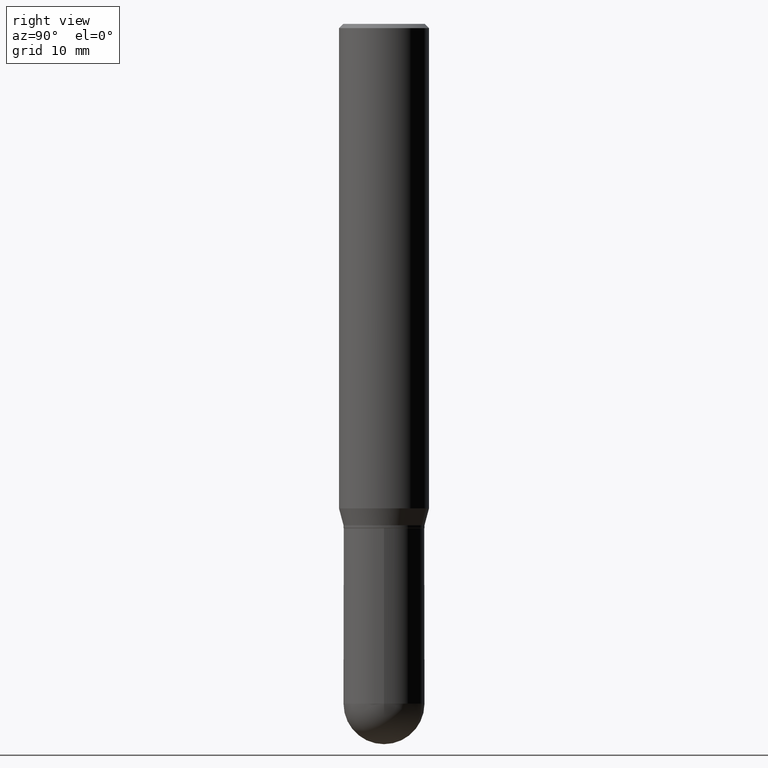
[diagram: clean part render]
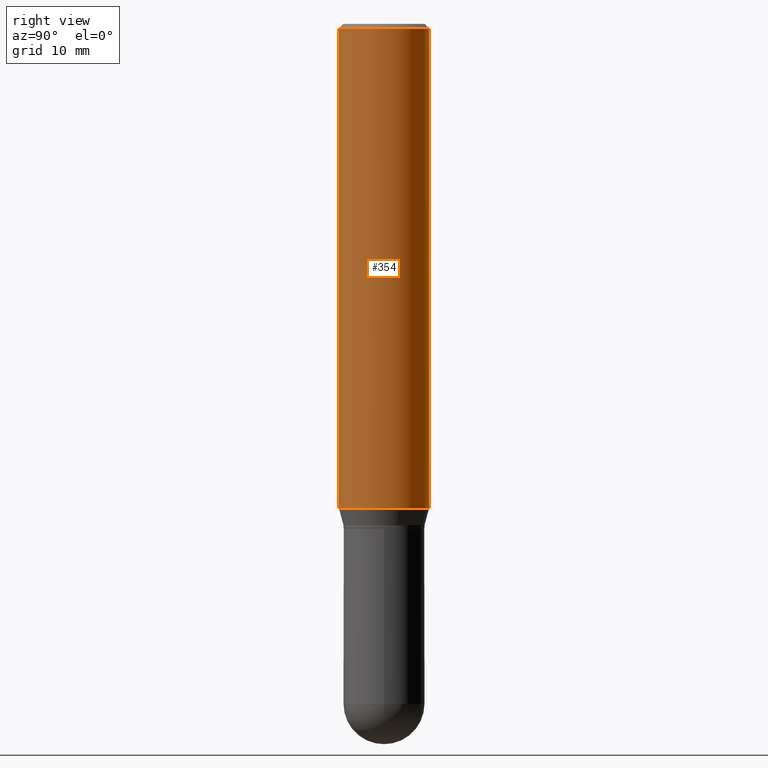
[diagram: same view with one face highlighted and labeled with its STEP entity id]
A machine part, right view. The second image highlights one B-rep face of the part: STEP entity #354.
In plain terms, the highlighted cylindrical surface (partial cylindrical patch) has radius 3.9688 mm, axis along (-0, 0, 1).
Its self-contained STEP definition (entity closure, byte-faithful):
#1 = CARTESIAN_POINT ( 'NONE',  ( 4.112073964147616750E-29, -5.871553085609828097E-15, -1.681593404861546848 ) ) ;
#30 = AXIS2_PLACEMENT_3D ( 'NONE', #311, #458, #114 ) ;
#35 = LINE ( 'NONE', #506, #58 ) ;
#49 = VERTEX_POINT ( 'NONE', #50 ) ;
#50 = CARTESIAN_POINT ( 'NONE',  ( 1.110223024625197561E-15, 0.1562499999999999445, -0.01500000000000051466 ) ) ;
#58 = VECTOR ( 'NONE', #203, 39.37007874015748143 ) ;
#73 = CIRCLE ( 'NONE', #30, 0.1562500000000000000 ) ;
#74 = AXIS2_PLACEMENT_3D ( 'NONE', #1, #286, #83 ) ;
#77 = DIRECTION ( 'NONE',  ( -2.445343774695752109E-29, 3.491660391052294645E-15, 1.000000000000000000 ) ) ;
#83 = DIRECTION ( 'NONE',  ( -6.982962677686265133E-15, -1.000000000000000000, 3.496765431890256920E-15 ) ) ;
#98 = VECTOR ( 'NONE', #151, 39.37007874015748143 ) ;
#104 = VERTEX_POINT ( 'NONE', #292 ) ;
#114 = DIRECTION ( 'NONE',  ( -6.982962677686265133E-15, -1.000000000000000000, 3.496765431890256920E-15 ) ) ;
#151 = DIRECTION ( 'NONE',  ( -2.445343774695752109E-29, 3.491660391052294645E-15, 1.000000000000000000 ) ) ;
#154 = CARTESIAN_POINT ( 'NONE',  ( 0.000000000000000000, 0.000000000000000000, 0.000000000000000000 ) ) ;
#156 = EDGE_LOOP ( 'NONE', ( #198, #270, #496, #386 ) ) ;
#180 = AXIS2_PLACEMENT_3D ( 'NONE', #154, #77, #389 ) ;
#197 = CARTESIAN_POINT ( 'NONE',  ( -1.091087918388437956E-15, -0.1562500000000058842, -1.681593404861546404 ) ) ;
#198 = ORIENTED_EDGE ( 'NONE', *, *, #501, .T. ) ;
#203 = DIRECTION ( 'NONE',  ( -2.445343774695752109E-29, 3.491660391052294645E-15, 1.000000000000000000 ) ) ;
#247 = FACE_OUTER_BOUND ( 'NONE', #156, .T. ) ;
#259 = VERTEX_POINT ( 'NONE', #352 ) ;
#270 = ORIENTED_EDGE ( 'NONE', *, *, #487, .T. ) ;
#286 = DIRECTION ( 'NONE',  ( -2.445343774695752109E-29, 3.491660391052294645E-15, 1.000000000000000000 ) ) ;
#292 = CARTESIAN_POINT ( 'NONE',  ( -1.091087918388478779E-15, -0.1562500000000000833, -0.01499999999999942178 ) ) ;
#308 = EDGE_CURVE ( 'NONE', #359, #104, #502, .T. ) ;
#310 = EDGE_CURVE ( 'NONE', #104, #49, #73, .T. ) ;
#311 = CARTESIAN_POINT ( 'NONE',  ( 3.668015662043620053E-31, -5.237490586578430900E-17, -0.01499999999999996822 ) ) ;
#334 = CIRCLE ( 'NONE', #74, 0.1562500000000000000 ) ;
#352 = CARTESIAN_POINT ( 'NONE',  ( 1.110223024625197561E-15, 0.1562499999999941436, -1.681593404861547514 ) ) ;
#354 = ADVANCED_FACE ( 'NONE', ( #247 ), #429, .T. ) ;
#359 = VERTEX_POINT ( 'NONE', #197 ) ;
#385 = CARTESIAN_POINT ( 'NONE',  ( -1.091087918388478976E-15, -0.1562500000000000000, 5.455719361019211000E-16 ) ) ;
#386 = ORIENTED_EDGE ( 'NONE', *, *, #308, .F. ) ;
#389 = DIRECTION ( 'NONE',  ( -6.982962677686265133E-15, -1.000000000000000000, 3.491660391052295040E-15 ) ) ;
#429 = CYLINDRICAL_SURFACE ( 'NONE', #180, 0.1562500000000000000 ) ;
#458 = DIRECTION ( 'NONE',  ( -2.445343774695752109E-29, 3.491660391052294645E-15, 1.000000000000000000 ) ) ;
#487 = EDGE_CURVE ( 'NONE', #259, #49, #35, .T. ) ;
#496 = ORIENTED_EDGE ( 'NONE', *, *, #310, .F. ) ;
#501 = EDGE_CURVE ( 'NONE', #359, #259, #334, .T. ) ;
#502 = LINE ( 'NONE', #385, #98 ) ;
#506 = CARTESIAN_POINT ( 'NONE',  ( 1.110223024625156343E-15, 0.1562500000000000000, -5.455719361019211000E-16 ) ) ;